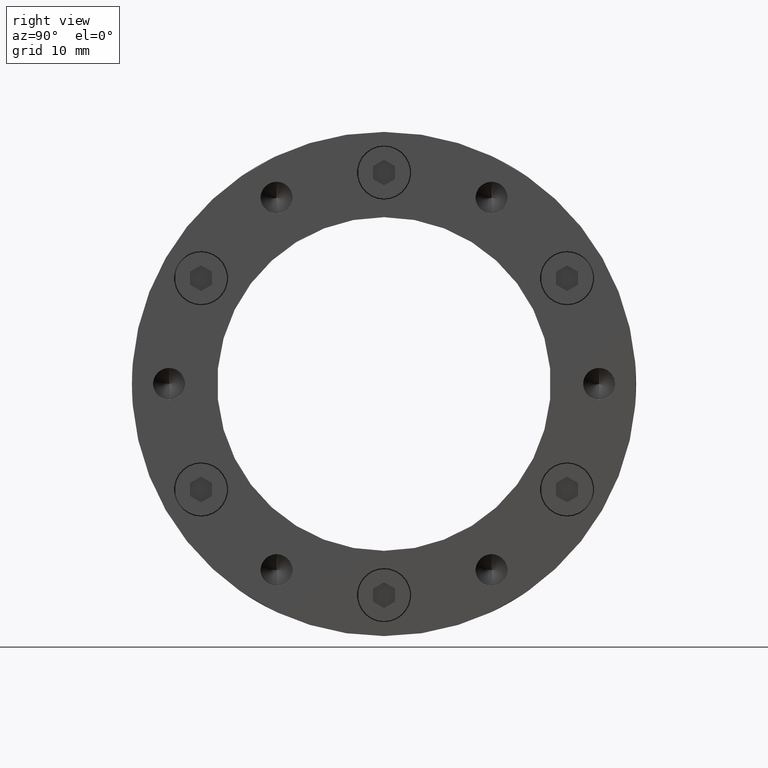
[diagram: clean part render]
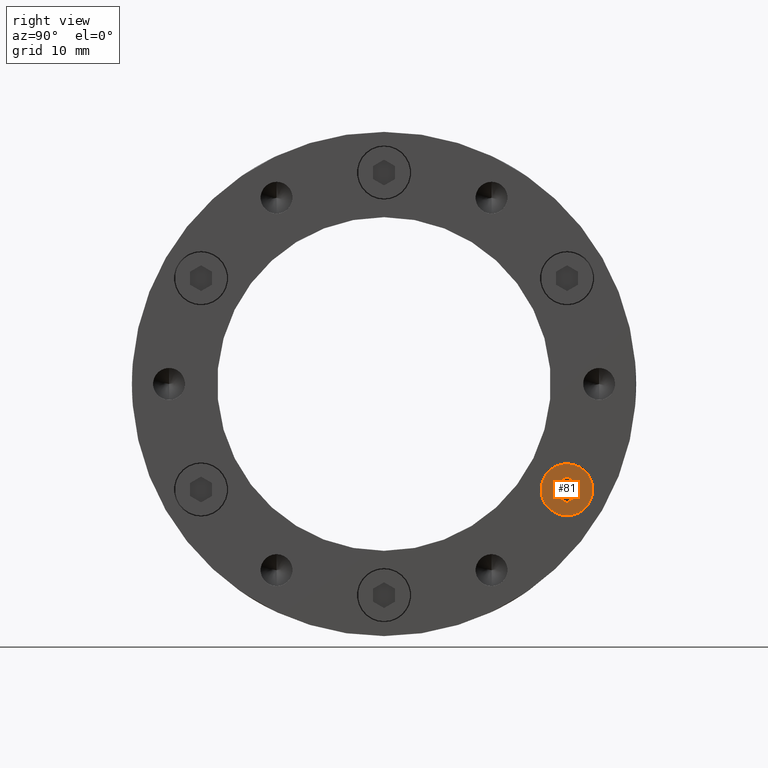
[diagram: same view with one face highlighted and labeled with its STEP entity id]
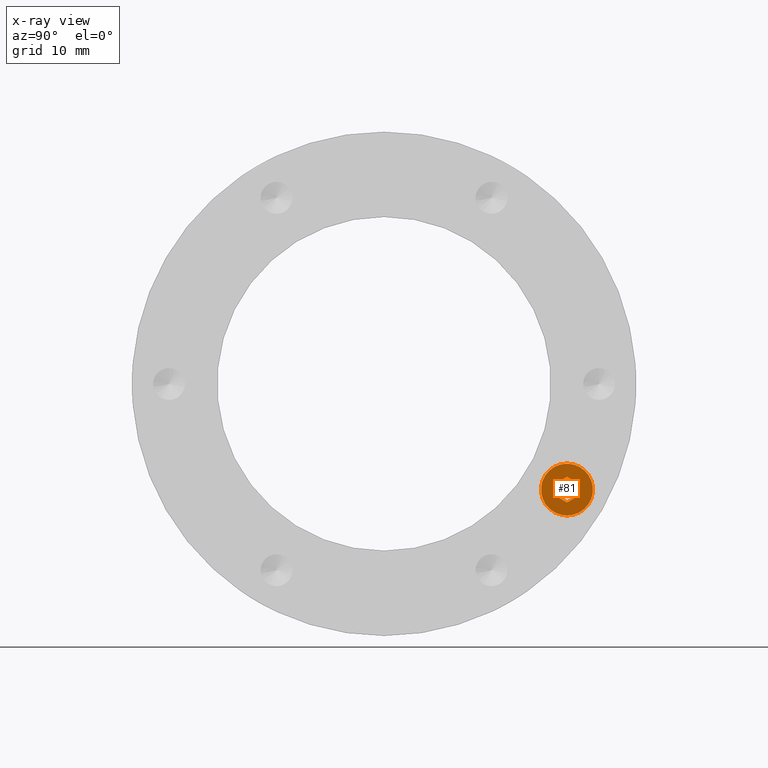
[diagram: x-ray of the same camera — body ghosted, the highlighted face saturated]
A machine part, right view. The second image highlights one B-rep face of the part: STEP entity #81.
The next image is the same camera in x-ray: the body ghosted, the highlighted face saturated — about 0% of this face is hidden behind the body in this view.
In plain terms, the highlighted planar face has unit normal (1, 0, 0).
Its self-contained STEP definition (entity closure, byte-faithful):
#81 = ADVANCED_FACE ( 'NONE', ( #345, #348 ), #1492, .T. ) ;
#117 = VERTEX_POINT ( 'NONE', #1559 ) ;
#122 = VERTEX_POINT ( 'NONE', #1564 ) ;
#123 = VERTEX_POINT ( 'NONE', #1565 ) ;
#124 = VERTEX_POINT ( 'NONE', #1566 ) ;
#127 = VERTEX_POINT ( 'NONE', #1569 ) ;
#128 = VERTEX_POINT ( 'NONE', #1570 ) ;
#131 = VERTEX_POINT ( 'NONE', #1573 ) ;
#132 = VERTEX_POINT ( 'NONE', #1574 ) ;
#345 = FACE_BOUND ( 'NONE', #1031, .T. ) ;
#348 = FACE_OUTER_BOUND ( 'NONE', #1030, .T. ) ;
#597 = LINE ( 'NONE', #2938, #609 ) ;
#608 = LINE ( 'NONE', #2942, #611 ) ;
#609 = VECTOR ( 'NONE', #2935, 1000.000000000000000 ) ;
#610 = LINE ( 'NONE', #2944, #613 ) ;
#611 = VECTOR ( 'NONE', #2943, 1000.000000000000000 ) ;
#612 = LINE ( 'NONE', #2946, #615 ) ;
#613 = VECTOR ( 'NONE', #2945, 1000.000000000000100 ) ;
#614 = LINE ( 'NONE', #2948, #617 ) ;
#615 = VECTOR ( 'NONE', #2947, 1000.000000000000000 ) ;
#616 = LINE ( 'NONE', #2950, #619 ) ;
#617 = VECTOR ( 'NONE', #2949, 1000.000000000000000 ) ;
#618 = CIRCLE ( 'NONE', #2019, 3.500000000000000000 ) ;
#619 = VECTOR ( 'NONE', #2951, 1000.000000000000000 ) ;
#626 = CIRCLE ( 'NONE', #2023, 3.500000000000000000 ) ;
#737 = ORIENTED_EDGE ( 'NONE', *, *, #2325, .F. ) ;
#741 = ORIENTED_EDGE ( 'NONE', *, *, #2330, .T. ) ;
#790 = ORIENTED_EDGE ( 'NONE', *, *, #2324, .F. ) ;
#913 = ORIENTED_EDGE ( 'NONE', *, *, #2327, .F. ) ;
#916 = ORIENTED_EDGE ( 'NONE', *, *, #2328, .F. ) ;
#946 = ORIENTED_EDGE ( 'NONE', *, *, #2326, .F. ) ;
#953 = ORIENTED_EDGE ( 'NONE', *, *, #2329, .F. ) ;
#960 = ORIENTED_EDGE ( 'NONE', *, *, #2336, .T. ) ;
#1030 = EDGE_LOOP ( 'NONE', ( #741, #960 ) ) ;
#1031 = EDGE_LOOP ( 'NONE', ( #953, #916, #913, #946, #737, #790 ) ) ;
#1484 = CARTESIAN_POINT ( 'NONE',  ( 0.0000000000000000000, 4.000000000000000000, 0.0000000000000000000 ) ) ;
#1492 = PLANE ( 'NONE',  #1952 ) ;
#1494 = DIRECTION ( 'NONE',  ( 0.0000000000000000000, 1.000000000000000000, 0.0000000000000000000 ) ) ;
#1495 = DIRECTION ( 'NONE',  ( 0.0000000000000000000, -0.0000000000000000000, 1.000000000000000000 ) ) ;
#1559 = CARTESIAN_POINT ( 'NONE',  ( 1.499999999999999800, 4.000000000000000000, -0.8660254037844389300 ) ) ;
#1564 = CARTESIAN_POINT ( 'NONE',  ( -1.499999999999999100, 4.000000000000000000, 0.8660254037844393700 ) ) ;
#1565 = CARTESIAN_POINT ( 'NONE',  ( 4.286263797015736600E-016, 4.000000000000000000, 3.500000000000000000 ) ) ;
#1566 = CARTESIAN_POINT ( 'NONE',  ( 0.0000000000000000000, 4.000000000000000000, -3.500000000000000000 ) ) ;
#1569 = CARTESIAN_POINT ( 'NONE',  ( -1.084202172485504400E-016, 4.000000000000000000, -1.732050807568877200 ) ) ;
#1570 = CARTESIAN_POINT ( 'NONE',  ( -1.499999999999999800, 4.000000000000000000, -0.8660254037844386000 ) ) ;
#1573 = CARTESIAN_POINT ( 'NONE',  ( 1.500000000000000000, 4.000000000000000000, 0.8660254037844387100 ) ) ;
#1574 = CARTESIAN_POINT ( 'NONE',  ( 4.046263255784118500E-016, 4.000000000000000000, 1.732050807568877400 ) ) ;
#1952 = AXIS2_PLACEMENT_3D ( 'NONE', #1484, #1494, #1495 ) ;
#2019 = AXIS2_PLACEMENT_3D ( 'NONE', #2953, #2954, #2955 ) ;
#2023 = AXIS2_PLACEMENT_3D ( 'NONE', #2969, #2970, #2971 ) ;
#2324 = EDGE_CURVE ( 'NONE', #127, #128, #597, .T. ) ;
#2325 = EDGE_CURVE ( 'NONE', #128, #122, #608, .T. ) ;
#2326 = EDGE_CURVE ( 'NONE', #122, #132, #610, .T. ) ;
#2327 = EDGE_CURVE ( 'NONE', #132, #131, #612, .T. ) ;
#2328 = EDGE_CURVE ( 'NONE', #131, #117, #614, .T. ) ;
#2329 = EDGE_CURVE ( 'NONE', #117, #127, #616, .T. ) ;
#2330 = EDGE_CURVE ( 'NONE', #124, #123, #618, .T. ) ;
#2336 = EDGE_CURVE ( 'NONE', #123, #124, #626, .T. ) ;
#2935 = DIRECTION ( 'NONE',  ( -0.8660254037844386000, 0.0000000000000000000, 0.5000000000000001100 ) ) ;
#2938 = CARTESIAN_POINT ( 'NONE',  ( -1.767567020076689400E-016, 4.000000000000000000, -1.732050807568877200 ) ) ;
#2942 = CARTESIAN_POINT ( 'NONE',  ( -1.499999999999999800, 4.000000000000000000, -0.8660254037844386000 ) ) ;
#2943 = DIRECTION ( 'NONE',  ( 3.755786496842897100E-016, 0.0000000000000000000, 1.000000000000000000 ) ) ;
#2944 = CARTESIAN_POINT ( 'NONE',  ( -1.499999999999999100, 4.000000000000000000, 0.8660254037844393700 ) ) ;
#2945 = DIRECTION ( 'NONE',  ( 0.8660254037844387100, 0.0000000000000000000, 0.4999999999999998300 ) ) ;
#2946 = CARTESIAN_POINT ( 'NONE',  ( 4.046263255784118500E-016, 4.000000000000000000, 1.732050807568877400 ) ) ;
#2947 = DIRECTION ( 'NONE',  ( 0.8660254037844386000, 0.0000000000000000000, -0.5000000000000001100 ) ) ;
#2948 = CARTESIAN_POINT ( 'NONE',  ( 1.500000000000000000, 4.000000000000000000, 0.8660254037844387100 ) ) ;
#2949 = DIRECTION ( 'NONE',  ( -1.251928832280965900E-016, 0.0000000000000000000, -1.000000000000000000 ) ) ;
#2950 = CARTESIAN_POINT ( 'NONE',  ( 1.499999999999999800, 4.000000000000000000, -0.8660254037844389300 ) ) ;
#2951 = DIRECTION ( 'NONE',  ( -0.8660254037844387100, 0.0000000000000000000, -0.4999999999999998300 ) ) ;
#2953 = CARTESIAN_POINT ( 'NONE',  ( 0.0000000000000000000, 4.000000000000000000, 0.0000000000000000000 ) ) ;
#2954 = DIRECTION ( 'NONE',  ( 0.0000000000000000000, 1.000000000000000000, 0.0000000000000000000 ) ) ;
#2955 = DIRECTION ( 'NONE',  ( 0.0000000000000000000, 0.0000000000000000000, 1.000000000000000000 ) ) ;
#2969 = CARTESIAN_POINT ( 'NONE',  ( 0.0000000000000000000, 4.000000000000000000, 0.0000000000000000000 ) ) ;
#2970 = DIRECTION ( 'NONE',  ( 0.0000000000000000000, 1.000000000000000000, 0.0000000000000000000 ) ) ;
#2971 = DIRECTION ( 'NONE',  ( 0.0000000000000000000, 0.0000000000000000000, 1.000000000000000000 ) ) ;